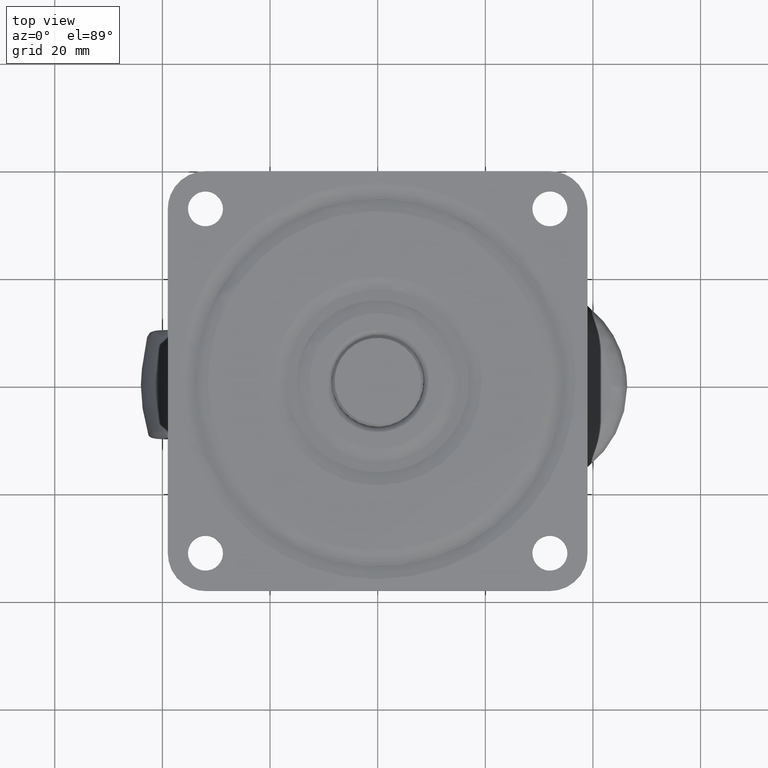
[diagram: clean part render]
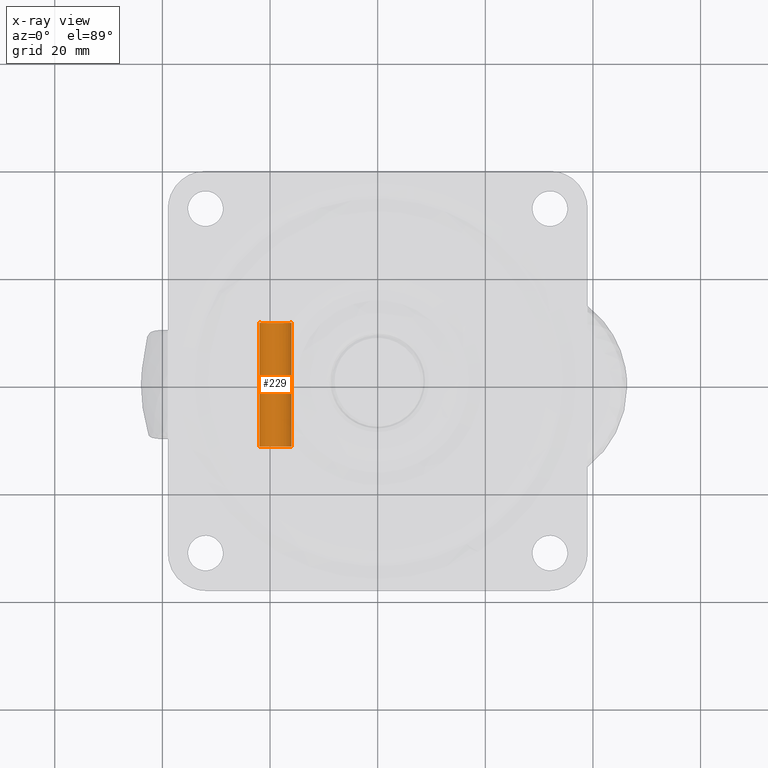
[diagram: x-ray — body ghosted, one internal face saturated and labeled with its STEP entity id]
A machine part, top view, then the same camera in x-ray: the body is ghosted and one INTERNAL B-rep face — a face not visible from any outside direction — is saturated and labeled: STEP entity #229.
In plain terms, the highlighted face is a freeform B-spline surface patch.
Its self-contained STEP definition (entity closure, byte-faithful):
#64=CARTESIAN_POINT('',(-16.023200851637242,-11.500000000000000,-39.627655045800012));
#65=VERTEX_POINT('',#64);
#79=CARTESIAN_POINT('',(-21.999885769189142,-11.500000000000000,-40.026214606881268));
#80=VERTEX_POINT('',#79);
#96=CARTESIAN_POINT('',(-21.999885769188921,11.500000000000000,-40.026214606906997));
#97=VERTEX_POINT('',#96);
#98=CARTESIAN_POINT('',(-21.999885769188921,11.500000000000000,-40.026214606906997));
#99=CARTESIAN_POINT('',(-21.999885769189142,-11.500000000000000,-40.026214606881268));
#100=QUASI_UNIFORM_CURVE('',1,(#98,#99),.UNSPECIFIED.,.F.,.U.);
#101=EDGE_CURVE('',#97,#80,#100,.T.);
#120=CARTESIAN_POINT('',(-16.023201358526151,11.500000000000000,-39.627650993738527));
#121=VERTEX_POINT('',#120);
#135=CARTESIAN_POINT('',(-16.023201358526151,11.500000000000000,-39.627650993738527));
#136=CARTESIAN_POINT('',(-16.023200851637242,-11.500000000000000,-39.627655045800012));
#137=QUASI_UNIFORM_CURVE('',1,(#135,#136),.UNSPECIFIED.,.F.,.U.);
#138=EDGE_CURVE('',#121,#65,#137,.T.);
#143=CARTESIAN_POINT('',(-21.999885769192510,12.074999999999999,-40.026214606495223));
#144=CARTESIAN_POINT('',(-21.973706162697397,12.075000000000001,-43.026100375687740));
#145=CARTESIAN_POINT('',(-18.973820393504880,12.074999999999999,-42.999920769192613));
#146=CARTESIAN_POINT('',(-15.973934624312367,12.075000000000001,-42.973741162697493));
#147=CARTESIAN_POINT('',(-16.000114230807490,12.074999999999999,-39.973855393504977));
#148=CARTESIAN_POINT('',(-16.001630706219178,12.075000000000005,-39.800084523125584));
#149=CARTESIAN_POINT('',(-16.023201358523387,12.075000000000003,-39.627650993760611));
#150=CARTESIAN_POINT('',(-21.999885769192510,-12.089375000000000,-40.026214606495223));
#151=CARTESIAN_POINT('',(-21.973706162697397,-12.089375000000004,-43.026100375687740));
#152=CARTESIAN_POINT('',(-18.973820393504880,-12.089375000000000,-42.999920769192613));
#153=CARTESIAN_POINT('',(-15.973934624312367,-12.089375000000004,-42.973741162697493));
#154=CARTESIAN_POINT('',(-16.000114230807490,-12.089375000000000,-39.973855393504977));
#155=CARTESIAN_POINT('',(-16.001630706219178,-12.089374999999999,-39.800084523125584));
#156=CARTESIAN_POINT('',(-16.023201358523387,-12.089375000000000,-39.627650993760611));
#164=(BOUNDED_SURFACE()B_SPLINE_SURFACE(2,1,((#143,#150),(#144,#151),(#145,#152),(#146,#153),(#147,#154),(#148,#155),(#149,#156)),.UNSPECIFIED.,.F.,.F.,.U.)B_SPLINE_SURFACE_WITH_KNOTS((3,2,2,3),(2,2),(0.0,4.970562748477134,9.941125496954268,10.338770516832440),(0.0,24.164375000000010),.UNSPECIFIED.)GEOMETRIC_REPRESENTATION_ITEM()RATIONAL_B_SPLINE_SURFACE(((1.0,1.0),(0.707106781186548,0.707106781186548),(1.0,1.0),(0.707106781186548,0.707106781186548),(1.0,1.0),(0.976568542494924,0.976568542494924),(0.956886118190660,0.956886118190660)))REPRESENTATION_ITEM('')SURFACE());
#165=CARTESIAN_POINT('',(-19.0,-11.500000000000000,-43.000035000000103));
#166=VERTEX_POINT('',#165);
#167=CARTESIAN_POINT('',(-16.023200851637238,-11.499999999999996,-39.627655045800019));
#168=CARTESIAN_POINT('',(-16.000000000000004,-11.500000000000005,-39.813122267135924));
#169=CARTESIAN_POINT('',(-16.0,-11.500000000000000,-40.000035000000103));
#170=CARTESIAN_POINT('',(-15.999999999999998,-11.500000000000000,-43.000035000000103));
#171=CARTESIAN_POINT('',(-19.0,-11.500000000000000,-43.000035000000103));
#179=(BOUNDED_CURVE()B_SPLINE_CURVE(2,(#167,#168,#169,#170,#171),.UNSPECIFIED.,.F.,.U.)B_SPLINE_CURVE_WITH_KNOTS((3,2,3),(0.228526300591344,0.250000000000000,0.500000000000000),.UNSPECIFIED.)CURVE()GEOMETRIC_REPRESENTATION_ITEM()RATIONAL_B_SPLINE_CURVE((0.954005875766391,0.974841996241465,1.0,0.707106781186548,1.0))REPRESENTATION_ITEM(''));
#180=EDGE_CURVE('',#65,#166,#179,.T.);
#181=ORIENTED_EDGE('',*,*,#180,.F.);
#182=ORIENTED_EDGE('',*,*,#138,.F.);
#183=CARTESIAN_POINT('',(-19.0,11.500000000000000,-43.000035000000103));
#184=VERTEX_POINT('',#183);
#185=CARTESIAN_POINT('',(-19.0,11.500000000000000,-43.000035000000103));
#186=CARTESIAN_POINT('',(-15.999999999999998,11.500000000000000,-43.000035000000103));
#187=CARTESIAN_POINT('',(-16.0,11.500000000000000,-40.000035000000103));
#188=CARTESIAN_POINT('',(-16.000000000000004,11.500000000000002,-39.813120217377268));
#189=CARTESIAN_POINT('',(-16.023201358526151,11.500000000000000,-39.627650993738520));
#197=(BOUNDED_CURVE()B_SPLINE_CURVE(2,(#185,#186,#187,#188,#189),.UNSPECIFIED.,.F.,.U.)B_SPLINE_CURVE_WITH_KNOTS((3,2,3),(0.0,0.250000000000000,0.271473928973204),.UNSPECIFIED.)CURVE()GEOMETRIC_REPRESENTATION_ITEM()RATIONAL_B_SPLINE_CURVE((1.0,0.707106781186548,1.0,0.974841727289867,0.954005430269861))REPRESENTATION_ITEM(''));
#198=EDGE_CURVE('',#184,#121,#197,.T.);
#199=ORIENTED_EDGE('',*,*,#198,.F.);
#200=CARTESIAN_POINT('',(-21.999885769188925,11.500000000000002,-40.026214606907011));
#201=CARTESIAN_POINT('',(-21.973933630968464,11.500000000000000,-43.000035000000103));
#202=CARTESIAN_POINT('',(-19.0,11.500000000000000,-43.000035000000103));
#210=(BOUNDED_CURVE()B_SPLINE_CURVE(2,(#200,#201,#202),.UNSPECIFIED.,.F.,.U.)B_SPLINE_CURVE_WITH_KNOTS((3,3),(0.751539894383344,1.0),.UNSPECIFIED.)CURVE()GEOMETRIC_REPRESENTATION_ITEM()RATIONAL_B_SPLINE_CURVE((0.996414027988495,0.708910879676829,1.0))REPRESENTATION_ITEM(''));
#211=EDGE_CURVE('',#97,#184,#210,.T.);
#212=ORIENTED_EDGE('',*,*,#211,.F.);
#213=ORIENTED_EDGE('',*,*,#101,.T.);
#214=CARTESIAN_POINT('',(-19.0,-11.500000000000000,-43.000035000000103));
#215=CARTESIAN_POINT('',(-21.973933631019495,-11.499999999999998,-43.000035000000096));
#216=CARTESIAN_POINT('',(-21.999885769189145,-11.500000000000002,-40.026214606881275));
#224=(BOUNDED_CURVE()B_SPLINE_CURVE(2,(#214,#215,#216),.UNSPECIFIED.,.F.,.U.)B_SPLINE_CURVE_WITH_KNOTS((3,3),(0.500000000000000,0.748460105619679),.UNSPECIFIED.)CURVE()GEOMETRIC_REPRESENTATION_ITEM()RATIONAL_B_SPLINE_CURVE((1.0,0.708910879673288,0.996414027995490))REPRESENTATION_ITEM(''));
#225=EDGE_CURVE('',#166,#80,#224,.T.);
#226=ORIENTED_EDGE('',*,*,#225,.F.);
#227=EDGE_LOOP('',(#181,#182,#199,#212,#213,#226));
#228=FACE_OUTER_BOUND('',#227,.T.);
#229=ADVANCED_FACE('',(#228),#164,.F.);